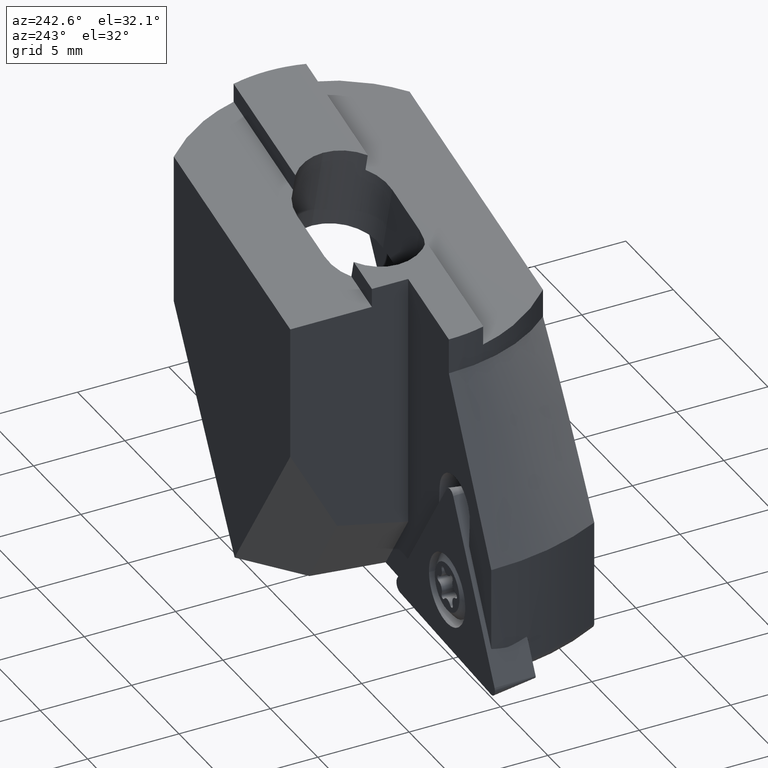
[diagram: clean part render]
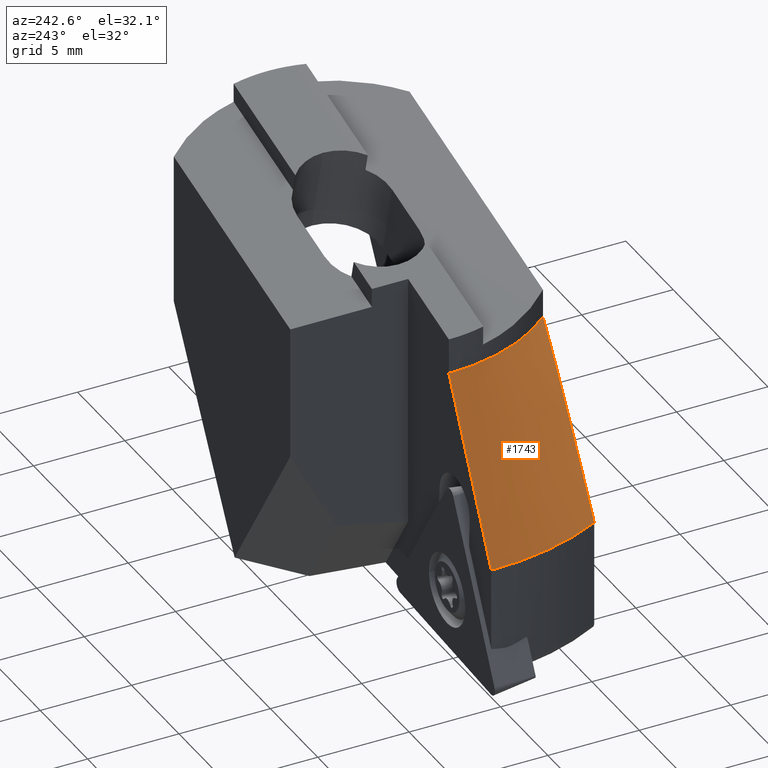
[diagram: same view with one face highlighted and labeled with its STEP entity id]
A machine part, auxiliary view. The second image highlights one B-rep face of the part: STEP entity #1743.
In plain terms, the highlighted conical surface has half-angle 27 deg.
Its self-contained STEP definition (entity closure, byte-faithful):
#1021=VERTEX_POINT('NONE',#2539);
#1073=EDGE_CURVE('NONE',#1599,#2147,#2594,.F.);
#1097=EDGE_CURVE('NONE',#1021,#2155,#2622,.T.);
#1599=VERTEX_POINT('NONE',#3182);
#1743=ADVANCED_FACE('NONE',(#3334),#3335,.T.);
#1815=EDGE_CURVE('NONE',#1021,#2147,#3413,.F.);
#1901=EDGE_CURVE('NONE',#2155,#1599,#3505,.T.);
#2147=VERTEX_POINT('NONE',#3779);
#2155=VERTEX_POINT('NONE',#3787);
#2539=CARTESIAN_POINT('',(-14.03,0.0,-15.5));
#2594=(B_SPLINE_CURVE(2,(#4342,#4343,#4344),.UNSPECIFIED.,.F.,.F.)B_SPLINE_CURVE_WITH_KNOTS((3,3),(1.07464493060161,11.237102277789),.UNSPECIFIED.)RATIONAL_B_SPLINE_CURVE((1.00707894467715,1.0376163031865,1.0126640637654))BOUNDED_CURVE()REPRESENTATION_ITEM('')GEOMETRIC_REPRESENTATION_ITEM()CURVE());
#2622=LINE('',#4385,#4386);
#3182=CARTESIAN_POINT('',(-7.04272674466361,-6.45,-6.70750493533695));
#3334=FACE_OUTER_BOUND('',#5719,.T.);
#3335=CONICAL_SURFACE('',#5720,9.55,0.47123889803847);
#3413=CIRCLE('',#5844,14.03);
#3505=CIRCLE('',#5968,9.55);
#3779=CARTESIAN_POINT('',(-12.4594702937163,-6.45,-15.5));
#3787=CARTESIAN_POINT('',(-9.55,0.0,-6.70750493533696));
#4342=CARTESIAN_POINT('',(-12.4594702937163,-6.45,-15.5));
#4343=CARTESIAN_POINT('',(-9.23653085380018,-6.45,-9.88269283967115));
#4344=CARTESIAN_POINT('',(-7.0427267446628,-6.45,-6.70750493533578));
#4385=CARTESIAN_POINT('',(-9.55,0.0,-6.70750493533695));
#4386=VECTOR('',#6936,1.0);
#5719=EDGE_LOOP('',(#7779,#7780,#7781,#7782));
#5720=AXIS2_PLACEMENT_3D('',#7783,#7784,#7785);
#5844=AXIS2_PLACEMENT_3D('',#7884,#7885,#7886);
#5968=AXIS2_PLACEMENT_3D('',#7995,#7996,#7997);
#6936=DIRECTION('',(0.453990499739548,0.0,0.891006524188367));
#7779=ORIENTED_EDGE('',*,*,#1073,.F.);
#7780=ORIENTED_EDGE('',*,*,#1901,.F.);
#7781=ORIENTED_EDGE('',*,*,#1097,.F.);
#7782=ORIENTED_EDGE('',*,*,#1815,.T.);
#7783=CARTESIAN_POINT('',(-8.21432444932547E-016,0.0,-6.70750493533695));
#7784=DIRECTION('',(-1.22464679914735E-016,-0.0,-1.0));
#7785=DIRECTION('',(-1.0,0.0,1.22464679914735E-016));
#7884=CARTESIAN_POINT('',(-1.8982025386784E-015,0.0,-15.5));
#7885=DIRECTION('',(-1.22464679914735E-016,0.0,-1.0));
#7886=DIRECTION('',(1.0,0.0,-1.22464679914735E-016));
#7995=CARTESIAN_POINT('',(-8.21432444932547E-016,0.0,-6.70750493533695));
#7996=DIRECTION('',(1.22464679914735E-016,-0.0,1.0));
#7997=DIRECTION('',(1.0,0.0,-1.22464679914735E-016));